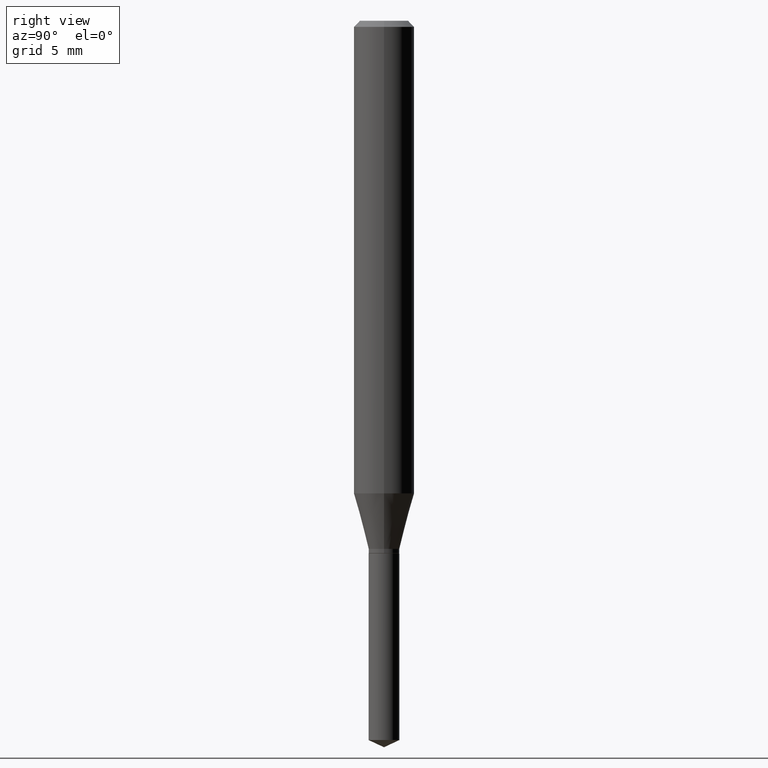
[diagram: clean part render]
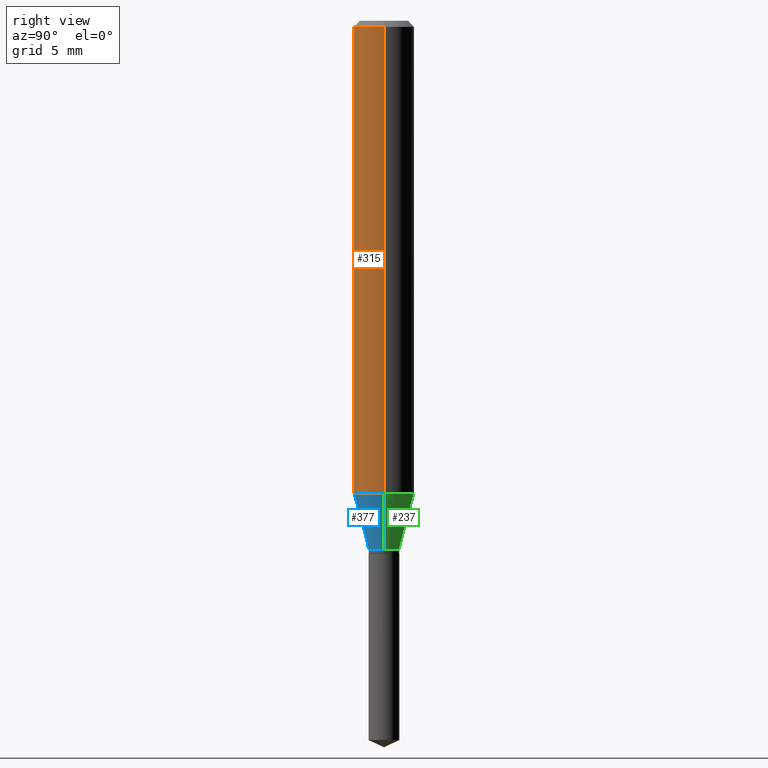
[diagram: same view with three faces highlighted in distinct colors, each labeled with its STEP entity id]
A machine part, right view with three faces highlighted in distinct colors.
Their STEP definitions:

[orange] entity #315 — the highlighted cylindrical surface (edge-blend (fillet) strip) has radius 1.5875 mm, axis along (-0, 0, 1).
#44 = LINE ( 'NONE', #268, #149 ) ;
#51 = VERTEX_POINT ( 'NONE', #405 ) ;
#83 = VECTOR ( 'NONE', #110, 39.37007874015748143 ) ;
#87 = FACE_OUTER_BOUND ( 'NONE', #212, .T. ) ;
#94 = DIRECTION ( 'NONE',  ( -2.445468806185136877E-29, 3.491481338843145188E-15, 1.000000000000000000 ) ) ;
#110 = DIRECTION ( 'NONE',  ( -2.445468806185136877E-29, 3.491481338843145188E-15, 1.000000000000000000 ) ) ;
#118 = CARTESIAN_POINT ( 'NONE',  ( 0.000000000000000000, 0.000000000000000000, 0.000000000000000000 ) ) ;
#124 = VERTEX_POINT ( 'NONE', #402 ) ;
#125 = CARTESIAN_POINT ( 'NONE',  ( 3.056836007731442729E-31, -4.364351673553962300E-17, -0.01250000000000008916 ) ) ;
#128 = CARTESIAN_POINT ( 'NONE',  ( 0.06250000000000012490, -3.843211205543924490E-15, -0.9757394376672569036 ) ) ;
#149 = VECTOR ( 'NONE', #94, 39.37007874015748143 ) ;
#158 = DIRECTION ( 'NONE',  ( 1.000000000000000000, -6.982962677686266711E-15, 0.000000000000000000 ) ) ;
#182 = AXIS2_PLACEMENT_3D ( 'NONE', #118, #263, #227 ) ;
#204 = EDGE_CURVE ( 'NONE', #430, #51, #406, .T. ) ;
#212 = EDGE_LOOP ( 'NONE', ( #392, #380, #280, #449 ) ) ;
#214 = DIRECTION ( 'NONE',  ( 1.000000000000000000, -6.982962677686264344E-15, 0.000000000000000000 ) ) ;
#227 = DIRECTION ( 'NONE',  ( 1.000000000000000000, -6.982962677686267499E-15, 4.876176775795936353E-29 ) ) ;
#230 = VERTEX_POINT ( 'NONE', #128 ) ;
#238 = LINE ( 'NONE', #401, #83 ) ;
#240 = AXIS2_PLACEMENT_3D ( 'NONE', #125, #309, #158 ) ;
#246 = AXIS2_PLACEMENT_3D ( 'NONE', #310, #462, #214 ) ;
#263 = DIRECTION ( 'NONE',  ( -2.445468806185136597E-29, 3.491481338843145583E-15, 1.000000000000000000 ) ) ;
#268 = CARTESIAN_POINT ( 'NONE',  ( -0.06250000000000005551, 4.440892098500630106E-16, -3.074334431409318916E-30 ) ) ;
#277 = CARTESIAN_POINT ( 'NONE',  ( -0.06250000000000000000, -1.281120567611971997E-15, -0.01250000000000008916 ) ) ;
#280 = ORIENTED_EDGE ( 'NONE', *, *, #461, .T. ) ;
#309 = DIRECTION ( 'NONE',  ( -2.445468806185136597E-29, 3.491481338843145583E-15, 1.000000000000000000 ) ) ;
#310 = CARTESIAN_POINT ( 'NONE',  ( 2.386140357779903165E-29, -3.406776038188532032E-15, -0.9757394376672569036 ) ) ;
#315 = ADVANCED_FACE ( 'NONE', ( #87 ), #414, .T. ) ;
#320 = EDGE_CURVE ( 'NONE', #124, #430, #44, .T. ) ;
#356 = EDGE_CURVE ( 'NONE', #124, #230, #360, .T. ) ;
#360 = CIRCLE ( 'NONE', #246, 0.06250000000000012490 ) ;
#380 = ORIENTED_EDGE ( 'NONE', *, *, #356, .T. ) ;
#392 = ORIENTED_EDGE ( 'NONE', *, *, #320, .F. ) ;
#401 = CARTESIAN_POINT ( 'NONE',  ( 0.06250000000000005551, -4.364351673553921131E-16, 3.047610484872463023E-30 ) ) ;
#402 = CARTESIAN_POINT ( 'NONE',  ( -0.06250000000000012490, -2.962686828338469022E-15, -0.9757394376672569036 ) ) ;
#405 = CARTESIAN_POINT ( 'NONE',  ( 0.06250000000000000000, -4.800786840909313294E-16, -0.01250000000000008916 ) ) ;
#406 = CIRCLE ( 'NONE', #240, 0.06250000000000000000 ) ;
#414 = CYLINDRICAL_SURFACE ( 'NONE', #182, 0.06250000000000005551 ) ;
#430 = VERTEX_POINT ( 'NONE', #277 ) ;
#449 = ORIENTED_EDGE ( 'NONE', *, *, #204, .F. ) ;
#461 = EDGE_CURVE ( 'NONE', #230, #51, #238, .T. ) ;
#462 = DIRECTION ( 'NONE',  ( -2.445468806185136597E-29, 3.491481338843145583E-15, 1.000000000000000000 ) ) ;

[blue] entity #377 — the highlighted conical surface has half-angle 15 deg.
#20 = ORIENTED_EDGE ( 'NONE', *, *, #410, .T. ) ;
#38 = CARTESIAN_POINT ( 'NONE',  ( -0.03175000000000000044, -3.581863081404619327E-15, -1.090500000000000247 ) ) ;
#55 = CARTESIAN_POINT ( 'NONE',  ( 0.03175000000000000044, -4.029169465024989587E-15, -1.090500000000000247 ) ) ;
#57 = DIRECTION ( 'NONE',  ( 1.000000000000000000, -6.982962677686264344E-15, 0.000000000000000000 ) ) ;
#67 = CARTESIAN_POINT ( 'NONE',  ( 2.666783733144892185E-29, -3.807460400008450745E-15, -1.090500000000000247 ) ) ;
#71 = CARTESIAN_POINT ( 'NONE',  ( 0.03175000000000000044, -4.029169465024989587E-15, -1.090500000000000247 ) ) ;
#73 = VECTOR ( 'NONE', #217, 39.37007874015748854 ) ;
#75 = FACE_OUTER_BOUND ( 'NONE', #274, .T. ) ;
#97 = CARTESIAN_POINT ( 'NONE',  ( 2.666783733144892185E-29, -3.807460400008450745E-15, -1.090500000000000247 ) ) ;
#107 = EDGE_CURVE ( 'NONE', #435, #124, #187, .T. ) ;
#115 = DIRECTION ( 'NONE',  ( -0.2588190451025211281, 5.211531920934547886E-15, 0.9659258262890679791 ) ) ;
#124 = VERTEX_POINT ( 'NONE', #402 ) ;
#128 = CARTESIAN_POINT ( 'NONE',  ( 0.06250000000000012490, -3.843211205543924490E-15, -0.9757394376672569036 ) ) ;
#132 = VECTOR ( 'NONE', #115, 39.37007874015748854 ) ;
#168 = CONICAL_SURFACE ( 'NONE', #428, 0.03175000000000000044, 0.2617993877991498519 ) ;
#171 = DIRECTION ( 'NONE',  ( -2.445468806185136597E-29, 3.491481338843145583E-15, 1.000000000000000000 ) ) ;
#187 = LINE ( 'NONE', #38, #132 ) ;
#189 = CIRCLE ( 'NONE', #225, 0.03175000000000000044 ) ;
#208 = ORIENTED_EDGE ( 'NONE', *, *, #356, .F. ) ;
#214 = DIRECTION ( 'NONE',  ( 1.000000000000000000, -6.982962677686264344E-15, 0.000000000000000000 ) ) ;
#217 = DIRECTION ( 'NONE',  ( 0.2588190451025211281, 1.565188264969622954E-15, 0.9659258262890679791 ) ) ;
#225 = AXIS2_PLACEMENT_3D ( 'NONE', #97, #171, #322 ) ;
#230 = VERTEX_POINT ( 'NONE', #128 ) ;
#239 = ORIENTED_EDGE ( 'NONE', *, *, #474, .T. ) ;
#246 = AXIS2_PLACEMENT_3D ( 'NONE', #310, #462, #214 ) ;
#274 = EDGE_LOOP ( 'NONE', ( #306, #20, #239, #208 ) ) ;
#306 = ORIENTED_EDGE ( 'NONE', *, *, #107, .F. ) ;
#310 = CARTESIAN_POINT ( 'NONE',  ( 2.386140357779903165E-29, -3.406776038188532032E-15, -0.9757394376672569036 ) ) ;
#322 = DIRECTION ( 'NONE',  ( 1.000000000000000000, -6.982962677686264344E-15, 0.000000000000000000 ) ) ;
#349 = DIRECTION ( 'NONE',  ( -2.445468806185136597E-29, 3.491481338843145583E-15, 1.000000000000000000 ) ) ;
#356 = EDGE_CURVE ( 'NONE', #124, #230, #360, .T. ) ;
#357 = VERTEX_POINT ( 'NONE', #55 ) ;
#360 = CIRCLE ( 'NONE', #246, 0.06250000000000012490 ) ;
#377 = ADVANCED_FACE ( 'NONE', ( #75 ), #168, .T. ) ;
#393 = LINE ( 'NONE', #71, #73 ) ;
#402 = CARTESIAN_POINT ( 'NONE',  ( -0.06250000000000012490, -2.962686828338469022E-15, -0.9757394376672569036 ) ) ;
#410 = EDGE_CURVE ( 'NONE', #435, #357, #189, .T. ) ;
#428 = AXIS2_PLACEMENT_3D ( 'NONE', #67, #349, #57 ) ;
#435 = VERTEX_POINT ( 'NONE', #475 ) ;
#462 = DIRECTION ( 'NONE',  ( -2.445468806185136597E-29, 3.491481338843145583E-15, 1.000000000000000000 ) ) ;
#474 = EDGE_CURVE ( 'NONE', #357, #230, #393, .T. ) ;
#475 = CARTESIAN_POINT ( 'NONE',  ( -0.03175000000000000044, -3.597574747429412859E-15, -1.090500000000000247 ) ) ;

[green] entity #237 — the highlighted conical surface has half-angle 15 deg.
#1 = CARTESIAN_POINT ( 'NONE',  ( 2.666783733144892185E-29, -3.807460400008450745E-15, -1.090500000000000247 ) ) ;
#38 = CARTESIAN_POINT ( 'NONE',  ( -0.03175000000000000044, -3.581863081404619327E-15, -1.090500000000000247 ) ) ;
#52 = FACE_OUTER_BOUND ( 'NONE', #431, .T. ) ;
#55 = CARTESIAN_POINT ( 'NONE',  ( 0.03175000000000000044, -4.029169465024989587E-15, -1.090500000000000247 ) ) ;
#71 = CARTESIAN_POINT ( 'NONE',  ( 0.03175000000000000044, -4.029169465024989587E-15, -1.090500000000000247 ) ) ;
#73 = VECTOR ( 'NONE', #217, 39.37007874015748854 ) ;
#80 = AXIS2_PLACEMENT_3D ( 'NONE', #257, #442, #407 ) ;
#92 = EDGE_CURVE ( 'NONE', #357, #435, #281, .T. ) ;
#98 = CIRCLE ( 'NONE', #354, 0.06250000000000012490 ) ;
#107 = EDGE_CURVE ( 'NONE', #435, #124, #187, .T. ) ;
#115 = DIRECTION ( 'NONE',  ( -0.2588190451025211281, 5.211531920934547886E-15, 0.9659258262890679791 ) ) ;
#124 = VERTEX_POINT ( 'NONE', #402 ) ;
#128 = CARTESIAN_POINT ( 'NONE',  ( 0.06250000000000012490, -3.843211205543924490E-15, -0.9757394376672569036 ) ) ;
#132 = VECTOR ( 'NONE', #115, 39.37007874015748854 ) ;
#151 = EDGE_CURVE ( 'NONE', #230, #124, #98, .T. ) ;
#152 = CARTESIAN_POINT ( 'NONE',  ( 2.386140357779903165E-29, -3.406776038188532032E-15, -0.9757394376672569036 ) ) ;
#159 = ORIENTED_EDGE ( 'NONE', *, *, #107, .T. ) ;
#187 = LINE ( 'NONE', #38, #132 ) ;
#205 = DIRECTION ( 'NONE',  ( -2.445468806185136597E-29, 3.491481338843145583E-15, 1.000000000000000000 ) ) ;
#217 = DIRECTION ( 'NONE',  ( 0.2588190451025211281, 1.565188264969622954E-15, 0.9659258262890679791 ) ) ;
#230 = VERTEX_POINT ( 'NONE', #128 ) ;
#237 = ADVANCED_FACE ( 'NONE', ( #52 ), #440, .T. ) ;
#257 = CARTESIAN_POINT ( 'NONE',  ( 2.666783733144892185E-29, -3.807460400008450745E-15, -1.090500000000000247 ) ) ;
#266 = DIRECTION ( 'NONE',  ( 1.000000000000000000, -6.982962677686264344E-15, 0.000000000000000000 ) ) ;
#270 = DIRECTION ( 'NONE',  ( -2.445468806185136597E-29, 3.491481338843145583E-15, 1.000000000000000000 ) ) ;
#278 = ORIENTED_EDGE ( 'NONE', *, *, #474, .F. ) ;
#281 = CIRCLE ( 'NONE', #80, 0.03175000000000000044 ) ;
#300 = DIRECTION ( 'NONE',  ( 1.000000000000000000, -6.982962677686264344E-15, 0.000000000000000000 ) ) ;
#354 = AXIS2_PLACEMENT_3D ( 'NONE', #152, #270, #300 ) ;
#357 = VERTEX_POINT ( 'NONE', #55 ) ;
#393 = LINE ( 'NONE', #71, #73 ) ;
#394 = ORIENTED_EDGE ( 'NONE', *, *, #151, .F. ) ;
#397 = ORIENTED_EDGE ( 'NONE', *, *, #92, .T. ) ;
#402 = CARTESIAN_POINT ( 'NONE',  ( -0.06250000000000012490, -2.962686828338469022E-15, -0.9757394376672569036 ) ) ;
#407 = DIRECTION ( 'NONE',  ( 1.000000000000000000, -6.982962677686264344E-15, 0.000000000000000000 ) ) ;
#431 = EDGE_LOOP ( 'NONE', ( #397, #159, #394, #278 ) ) ;
#435 = VERTEX_POINT ( 'NONE', #475 ) ;
#440 = CONICAL_SURFACE ( 'NONE', #479, 0.03175000000000000044, 0.2617993877991498519 ) ;
#442 = DIRECTION ( 'NONE',  ( -2.445468806185136597E-29, 3.491481338843145583E-15, 1.000000000000000000 ) ) ;
#474 = EDGE_CURVE ( 'NONE', #357, #230, #393, .T. ) ;
#475 = CARTESIAN_POINT ( 'NONE',  ( -0.03175000000000000044, -3.597574747429412859E-15, -1.090500000000000247 ) ) ;
#479 = AXIS2_PLACEMENT_3D ( 'NONE', #1, #205, #266 ) ;